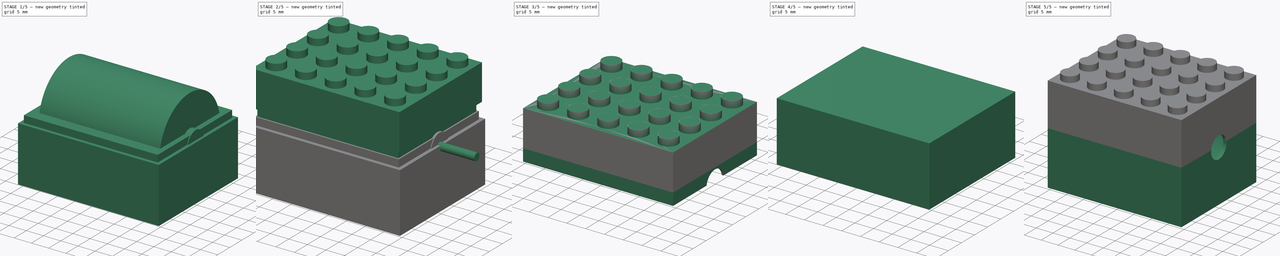
[diagram: build sequence overview — one tinted view per stage of 5, left to right]
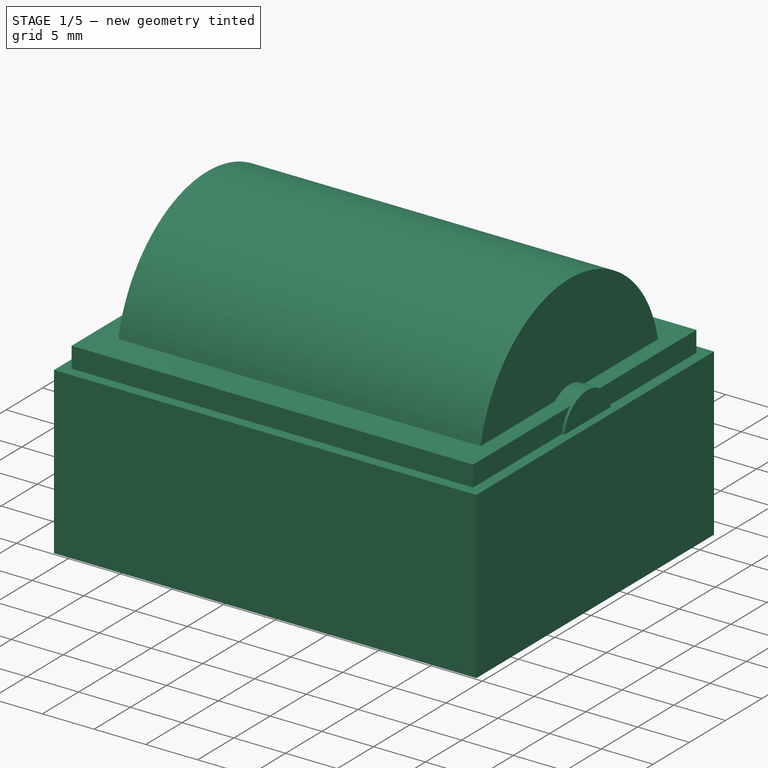
[diagram: stage 1 of 5 — iso view after this stage's code; geometry added in this stage tinted green]
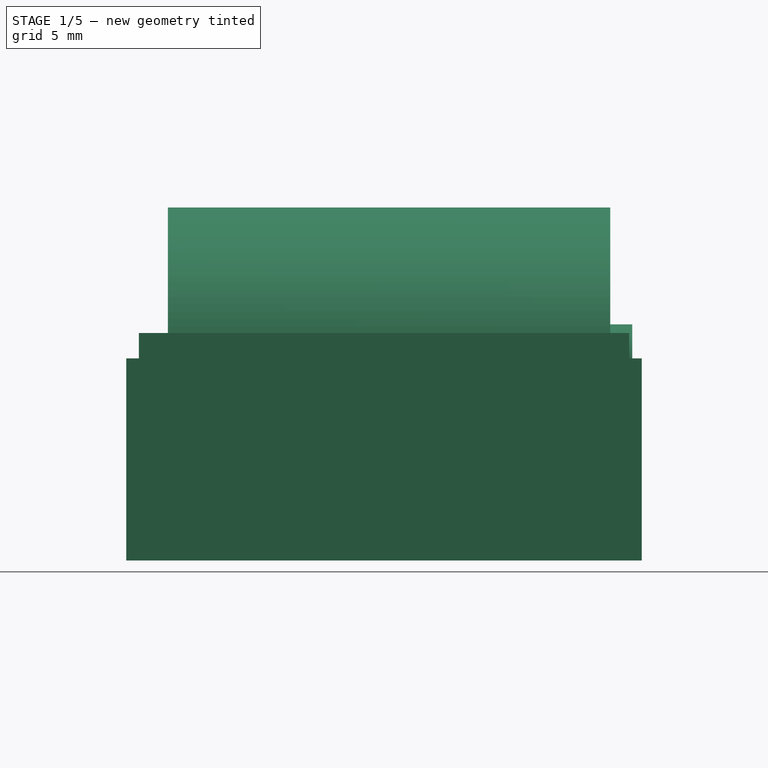
[diagram: stage 1 of 5 — front view after this stage's code; geometry added in this stage tinted green]
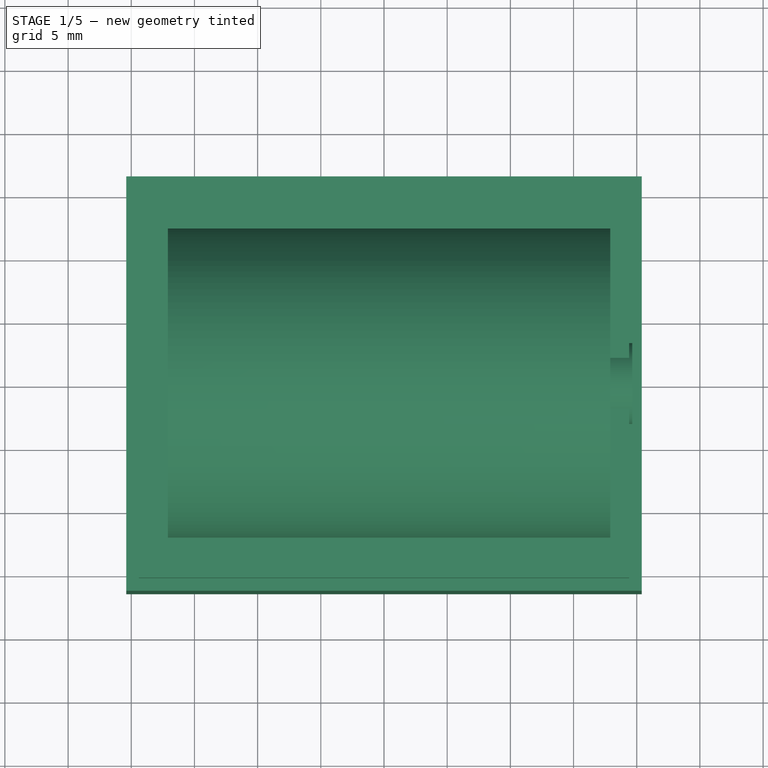
[diagram: stage 1 of 5 — top view after this stage's code; geometry added in this stage tinted green]
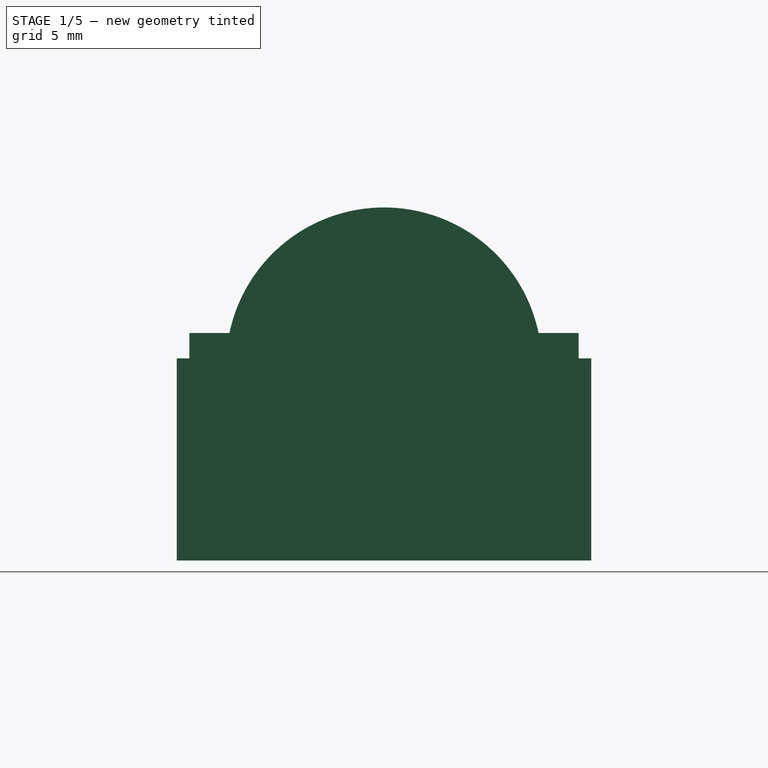
[diagram: stage 1 of 5 — right view after this stage's code; geometry added in this stage tinted green]
FCSTD DOCUMENT  (FreeCAD 0.15R4671 (Git))
Label: lego-engine
License: All rights reserved
LicenseURL: http://en.wikipedia.org/wiki/All_rights_reserved
objects: Sketcher::SketchObject×10, PartDesign::Pad×7, PartDesign::Fillet×4, Part::FeaturePython×3, Part::MultiFuse×3, PartDesign::Pocket×3, Part::Cut×3
note: 43 computed .brp shape members not serialized (recipe doc carries the construction recipe); baked Part::Feature solids carry a one-line shape summary decoded from their .brp

FEATURE [Sketcher::SketchObject] Sketch005  label="enginedimension"
  Placement = pos=(17.9,0,0) rot=(0.57735,0.57735,0.57735;2.0944rad)
  sketch-geometry (1):
    g0: Circle CenterX=0 CenterY=14.4397 CenterZ=0 NormalX=0 NormalY=0 NormalZ=1 Radius=12.5
  constraints (3):
    c: PointOnObject(g0,g-2)
    c: DistanceY(g-1,g0) = 14.4397
    c: Radius(g0) = 12.5
FEATURE [PartDesign::Pad] Pad001
  Length = 35
  Length2 = 100
  Placement = pos=(17.9,0,0) rot=(0.57735,0.57735,0.57735;2.0944rad)
  Reversed = true
  Sketch = -> Sketch005
  Type = 0
FEATURE [Sketcher::SketchObject] Sketch006  label="axis01"
  ExternalGeometry = -> [Pad001]
  Placement = pos=(17.9,0,0) rot=(0.57735,0.57735,0.57735;2.0944rad)
  Support = -> Pad001 [Face2]
  sketch-geometry (1):
    g0: Circle CenterX=0 CenterY=14.4397 CenterZ=0 NormalX=0 NormalY=0 NormalZ=1 Radius=3.25
  constraints (2):
    c: Coincident(g0,g-3)
    c: Radius(g0) = 3.25
FEATURE [PartDesign::Pad] Pad002
  Length = 1.75
  Length2 = 100
  Placement = pos=(17.9,0,0) rot=(0.57735,0.57735,0.57735;2.0944rad)
  Sketch = -> Sketch006
  Type = 0
FEATURE [Sketcher::SketchObject] Sketch009
  Placement = pos=(0,0,-1) rot=(0,0,1;0rad)
  sketch-geometry (4):
    g0: LineSegment StartX=-20.4 StartY=-16.4 StartZ=0 EndX=20.4 EndY=-16.4 EndZ=0
    g1: LineSegment StartX=20.4 StartY=-16.4 StartZ=0 EndX=20.4 EndY=16.4 EndZ=0
    g2: LineSegment StartX=20.4 StartY=16.4 StartZ=0 EndX=-20.4 EndY=16.4 EndZ=0
    g3: LineSegment StartX=-20.4 StartY=16.4 StartZ=0 EndX=-20.4 EndY=-16.4 EndZ=0
  constraints (12):
    c: Coincident(g0,g1)
    c: Coincident(g1,g2)
    c: Coincident(g2,g3)
    c: Coincident(g3,g0)
    c: Horizontal(g0)
    c: Horizontal(g2)
    c: Vertical(g1)
    c: Vertical(g3)
    c: DistanceY(g1,g0) = -32.8
    c: Symmetric(g1,g0,g-1)
    c: DistanceX(g2,g1) = 40.8
    c: Symmetric(g2,g1,g-2)
FEATURE [PartDesign::Pad] Pad004
  Length = 16
  Length2 = 100
  Placement = pos=(0,0,-1) rot=(0,0,1;0rad)
  Sketch = -> Sketch009
  Type = 0
FEATURE [Sketcher::SketchObject] Sketch010
  Placement = pos=(0,0,15) rot=(0,0,1;0rad)
  Support = -> Pad004 [Face6]
  sketch-geometry (4):
    g0: LineSegment StartX=-19.4 StartY=15.4 StartZ=0 EndX=19.4 EndY=15.4 EndZ=0
    g1: LineSegment StartX=19.4 StartY=15.4 StartZ=0 EndX=19.4 EndY=-15.4 EndZ=0
    g2: LineSegment StartX=19.4 StartY=-15.4 StartZ=0 EndX=-19.4 EndY=-15.4 EndZ=0
    g3: LineSegment StartX=-19.4 StartY=-15.4 StartZ=0 EndX=-19.4 EndY=15.4 EndZ=0
  constraints (12):
    c: Coincident(g0,g1)
    c: Coincident(g1,g2)
    c: Coincident(g2,g3)
    c: Coincident(g3,g0)
    c: Horizontal(g0)
    c: Horizontal(g2)
    c: Vertical(g1)
    c: Vertical(g3)
    c: Symmetric(g0,g0,g-2)
    c: Symmetric(g2,g0,g-1)
    c: DistanceY(g0,g2) = -30.8
    c: DistanceX(g0,g0) = 38.8
FEATURE [PartDesign::Pad] Pad005
  Length = 2
  Length2 = 100
  Placement = pos=(0,0,-1) rot=(0,0,1;0rad)
  Sketch = -> Sketch010
  Type = 0
FEATURE [Part::MultiFuse] Fusion001  label="aid upper piece cut"
  Shapes = -> [Pad004,Pad005]
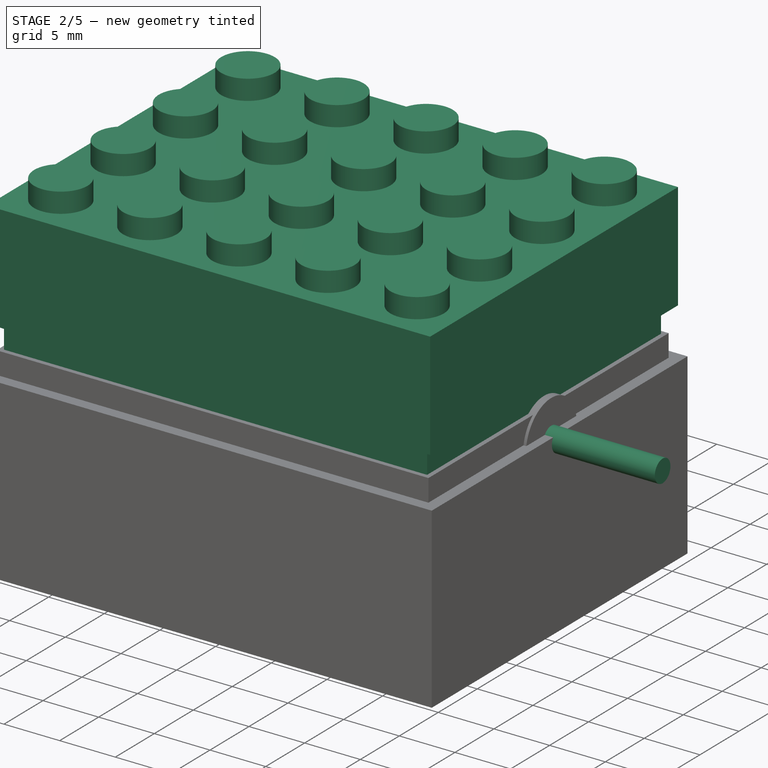
[diagram: stage 2 of 5 — iso view after this stage's code; geometry added in this stage tinted green]
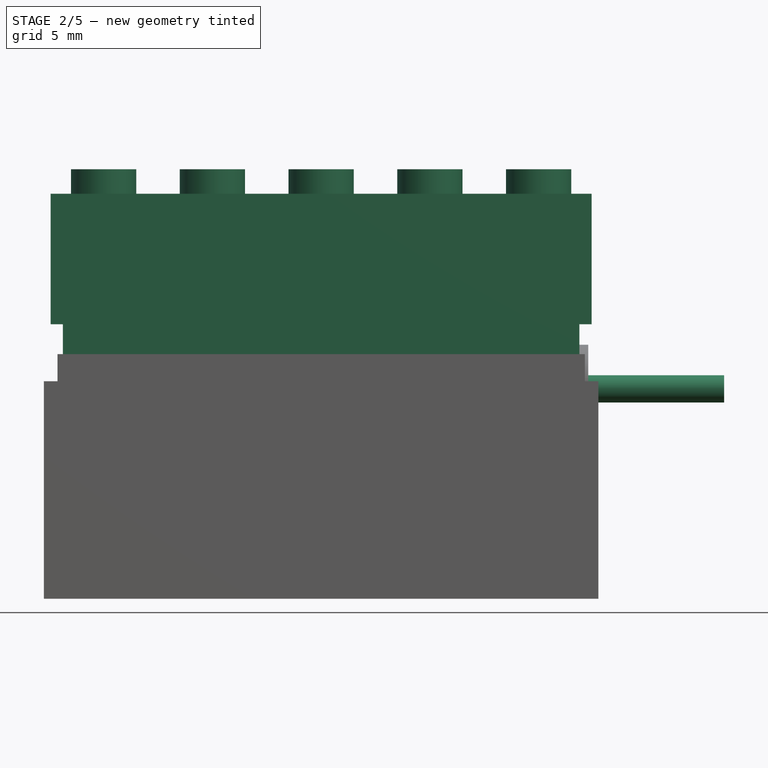
[diagram: stage 2 of 5 — front view after this stage's code; geometry added in this stage tinted green]
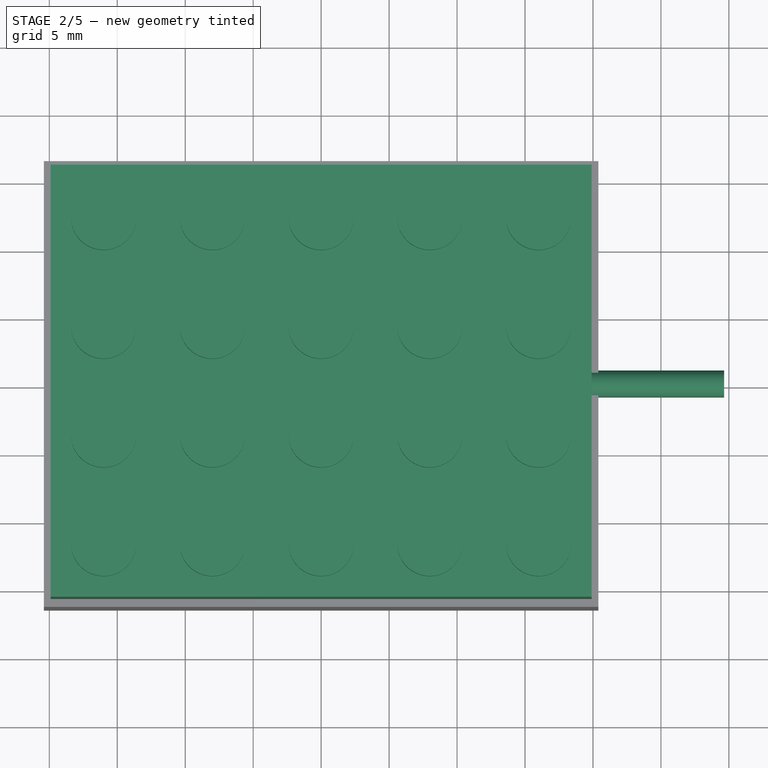
[diagram: stage 2 of 5 — top view after this stage's code; geometry added in this stage tinted green]
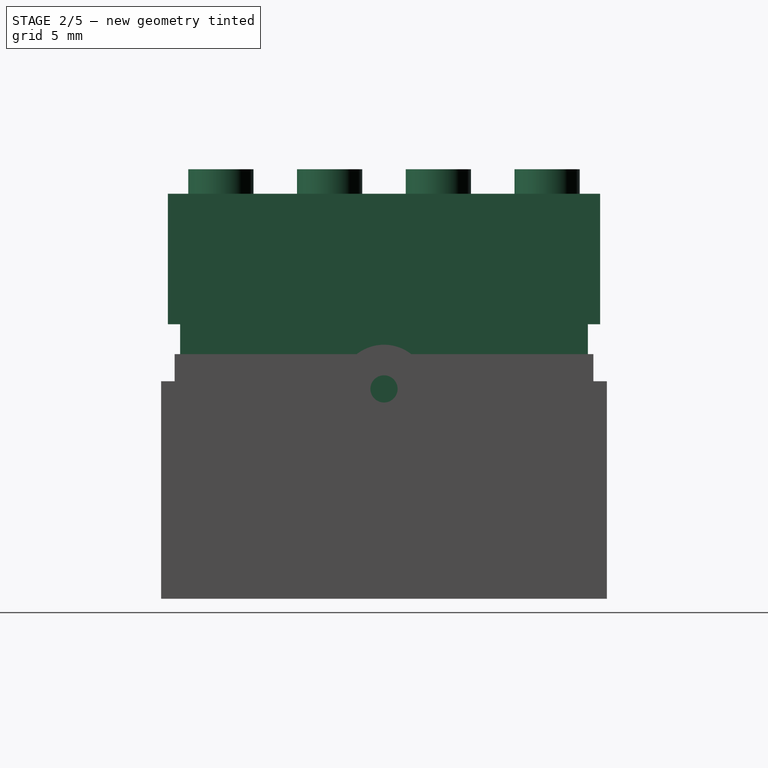
[diagram: stage 2 of 5 — right view after this stage's code; geometry added in this stage tinted green]
FEATURE [Part::FeaturePython] Lego002  # WARN: FeaturePython — macro-defined, semantics opaque (R4)
  Placement = pos=(0,0,19.2) rot=(0,0,1;0rad)
  unitsX = 5
  unitsY = 4
FEATURE [Sketcher::SketchObject] Sketch
  Placement = pos=(0,0,2) rot=(0,0,1;0rad)
  sketch-geometry (4):
    g0: LineSegment StartX=-19 StartY=-15 StartZ=0 EndX=19 EndY=-15 EndZ=0
    g1: LineSegment StartX=19 StartY=-15 StartZ=0 EndX=19 EndY=15 EndZ=0
    g2: LineSegment StartX=19 StartY=15 StartZ=0 EndX=-19 EndY=15 EndZ=0
    g3: LineSegment StartX=-19 StartY=15 StartZ=0 EndX=-19 EndY=-15 EndZ=0
  constraints (12):
    c: Coincident(g0,g1)
    c: Coincident(g1,g2)
    c: Coincident(g2,g3)
    c: Coincident(g3,g0)
    c: Horizontal(g0)
    c: Horizontal(g2)
    c: Vertical(g1)
    c: Vertical(g3)
    c: DistanceY(g-1,g1) = 15
    c: DistanceX(g-1,g2) = -19
    c: Symmetric(g2,g1,g-2)
    c: Symmetric(g1,g0,g-1)
FEATURE [PartDesign::Pad] Pad
  Length = 26.2
  Length2 = 100
  Placement = pos=(0,0,2) rot=(0,0,1;0rad)
  Sketch = -> Sketch
  Type = 0
FEATURE [Sketcher::SketchObject] Sketch007  label="axis"
  ExternalGeometry = -> [Pad002]
  Placement = pos=(19.65,0,0) rot=(0.57735,0.57735,0.57735;2.0944rad)
  Support = -> Pad002 [Face5]
  sketch-geometry (1):
    g0: Circle CenterX=0 CenterY=14.4397 CenterZ=0 NormalX=0 NormalY=0 NormalZ=1 Radius=1
  constraints (2):
    c: Coincident(g0,g-3)
    c: Radius(g0) = 1
FEATURE [PartDesign::Pad] Pad003
  Length = 10
  Length2 = 100
  Placement = pos=(17.9,0,0) rot=(0.57735,0.57735,0.57735;2.0944rad)
  Sketch = -> Sketch007
  Type = 0
FEATURE [Sketcher::SketchObject] Sketch008
  ExternalGeometry = -> [Pad003]
  Placement = pos=(-17.1,0,0) rot=(-0.57735,-0.57735,0.57735;2.0944rad)
  Support = -> Pad003 [Face3]
  sketch-geometry (8):
    g0: LineSegment StartX=-1.5 StartY=-2.03003 StartZ=0 EndX=-1.5 EndY=-4.93003 EndZ=0
    g1: LineSegment StartX=-1.5 StartY=-4.93003 StartZ=0 EndX=1.5 EndY=-4.93003 EndZ=0
    g2: LineSegment StartX=1.5 StartY=-4.93003 StartZ=0 EndX=1.5 EndY=-2.03003 EndZ=0
    g3: ArcOfCircle CenterX=0 CenterY=-14.4397 CenterZ=0 NormalX=0 NormalY=0 NormalZ=1 Radius=12.5 StartAngle=1.45051 EndAngle=1.69109
    g4: LineSegment StartX=1.5 StartY=-26.8494 StartZ=0 EndX=1.5 EndY=-23.9494 EndZ=0
    g5: LineSegment StartX=1.5 StartY=-23.9494 StartZ=0 EndX=-1.5 EndY=-23.9494 EndZ=0
    g6: LineSegment StartX=-1.5 StartY=-23.9494 StartZ=0 EndX=-1.5 EndY=-26.8494 EndZ=0
    g7: ArcOfCircle CenterX=0 CenterY=-14.4397 CenterZ=0 NormalX=0 NormalY=0 NormalZ=1 Radius=12.5 StartAngle=4.5921 EndAngle=4.83268
  constraints (26):
    c: PointOnObject(g0,g-3)
    c: Vertical(g0)
    c: Coincident(g0,g1)
    c: Horizontal(g1)
    c: Coincident(g1,g2)
    c: PointOnObject(g2,g-3)
    c: Vertical(g2)
    c: Coincident(g3,g-3)
    c: Coincident(g3,g2)
    c: Coincident(g3,g0)
    c: DistanceX(g1,g0) = -3
    c: Symmetric(g1,g0,g-2)
    c: DistanceY(g0,g0) = 2.9
    c: PointOnObject(g4,g-3)
    c: Vertical(g4)
    c: Coincident(g4,g5)
    c: Horizontal(g5)
    c: Coincident(g5,g6)
    c: PointOnObject(g6,g-3)
    c: Vertical(g6)
    c: Coincident(g7,g3)
    c: Coincident(g7,g6)
    c: Coincident(g7,g4)
    c: Equal(g4,g2)
    c: Equal(g5,g1)
    c: Equal(g6,g0)
FEATURE [PartDesign::Pocket] Pocket001  label="engine"
  Length = 7
  Placement = pos=(17.9,0,0) rot=(0.57735,0.57735,0.57735;2.0944rad)
  Sketch = -> Sketch008
  Type = 0
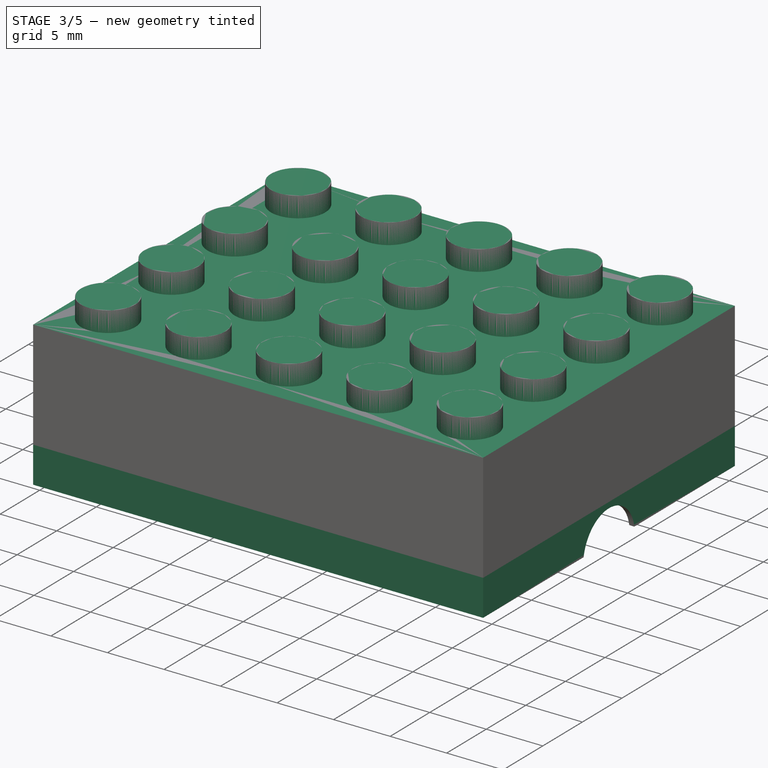
[diagram: stage 3 of 5 — iso view after this stage's code; geometry added in this stage tinted green]
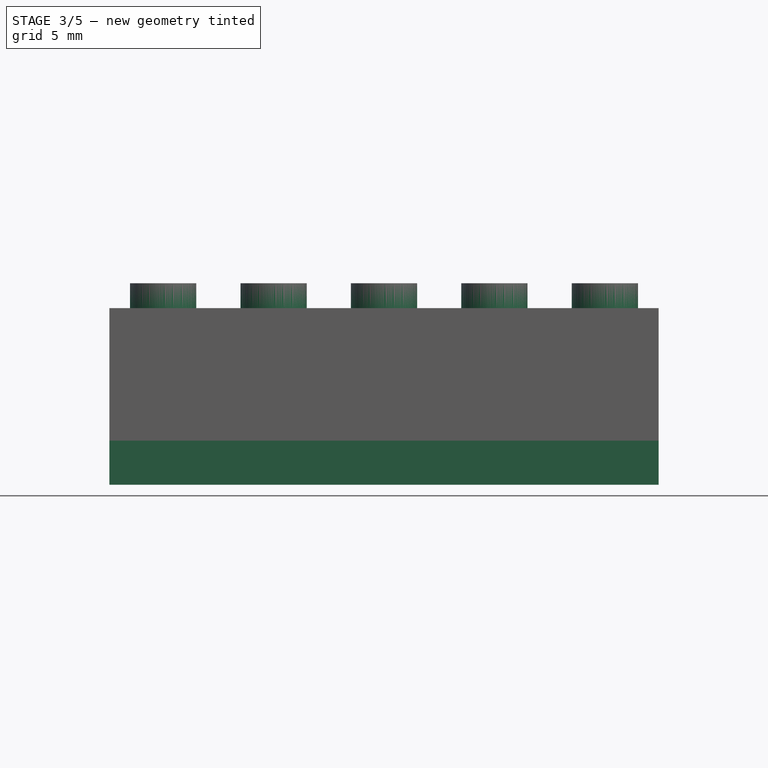
[diagram: stage 3 of 5 — front view after this stage's code; geometry added in this stage tinted green]
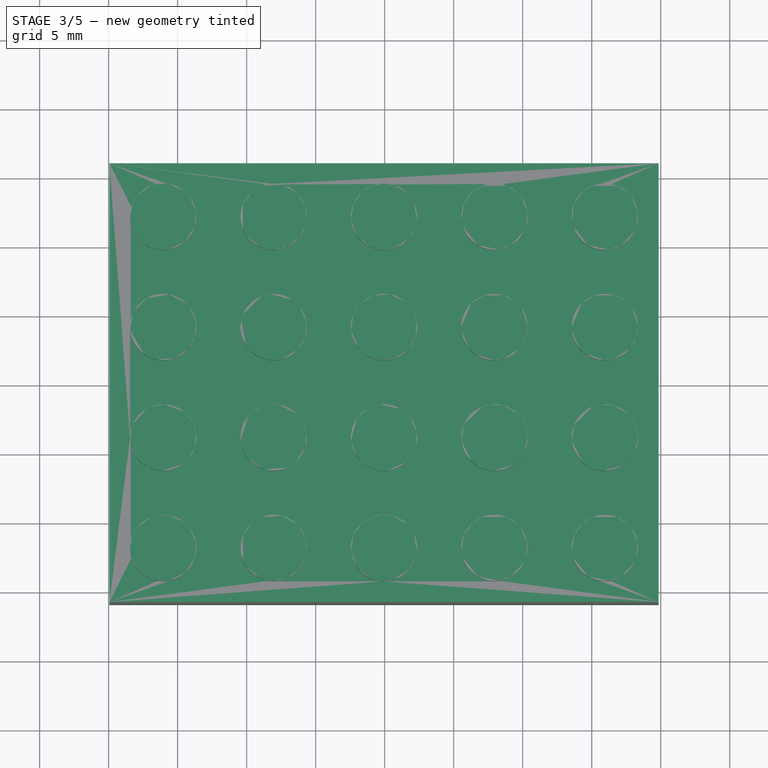
[diagram: stage 3 of 5 — top view after this stage's code; geometry added in this stage tinted green]
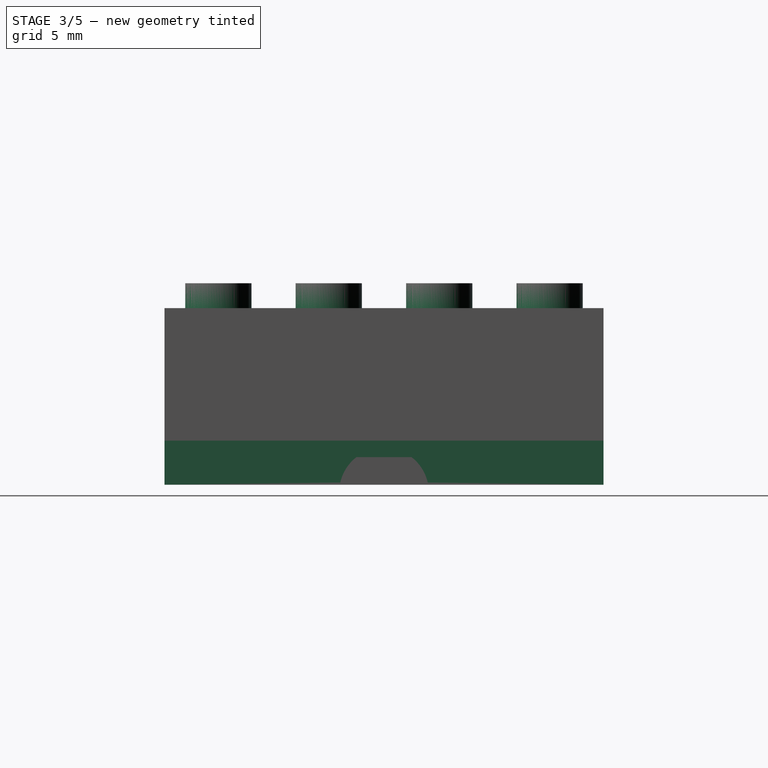
[diagram: stage 3 of 5 — right view after this stage's code; geometry added in this stage tinted green]
FEATURE [Part::FeaturePython] Lego  # WARN: FeaturePython — macro-defined, semantics opaque (R4)
  unitsX = 5
  unitsY = 4
FEATURE [Part::FeaturePython] Lego001  # WARN: FeaturePython — macro-defined, semantics opaque (R4)
  Placement = pos=(0,0,9.6) rot=(0,0,1;0rad)
  unitsX = 5
  unitsY = 4
FEATURE [Part::MultiFuse] Fusion  label="brick"
  Placement = pos=(-1,0,-1) rot=(0,0,1;0rad)
  Shapes = -> [Lego,Lego001,Lego002,Pad]
FEATURE [Part::Cut] Cut  label="engine brick"
  Base = -> Fusion
  Placement = pos=(0.950052,0,0) rot=(0,0,1;0rad)
  Tool = -> Pocket001
FEATURE [Part::Cut] Cut002  label="upperpiece"
  Base = -> Cut
  Tool = -> Fusion001
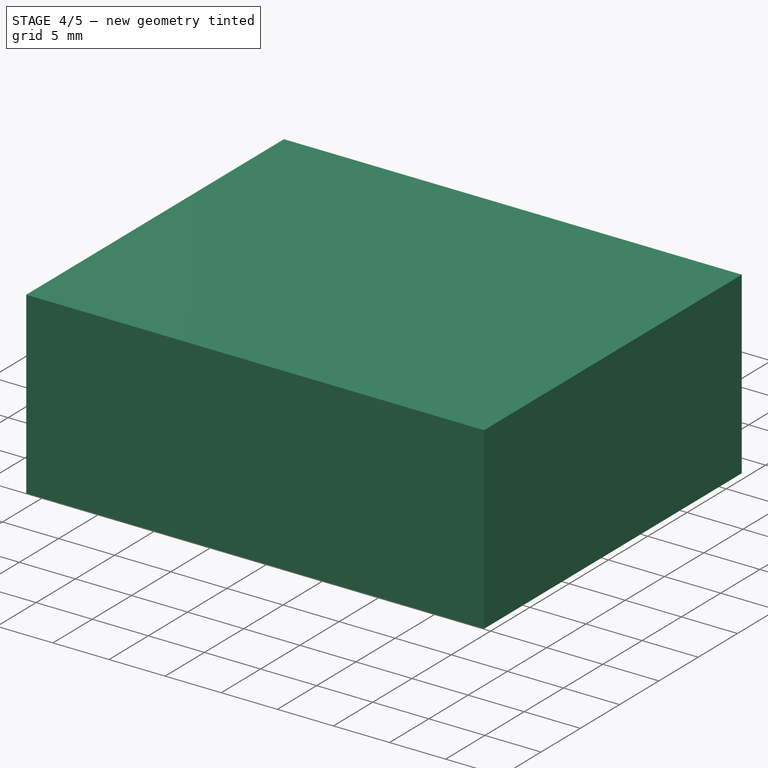
[diagram: stage 4 of 5 — iso view after this stage's code; geometry added in this stage tinted green]
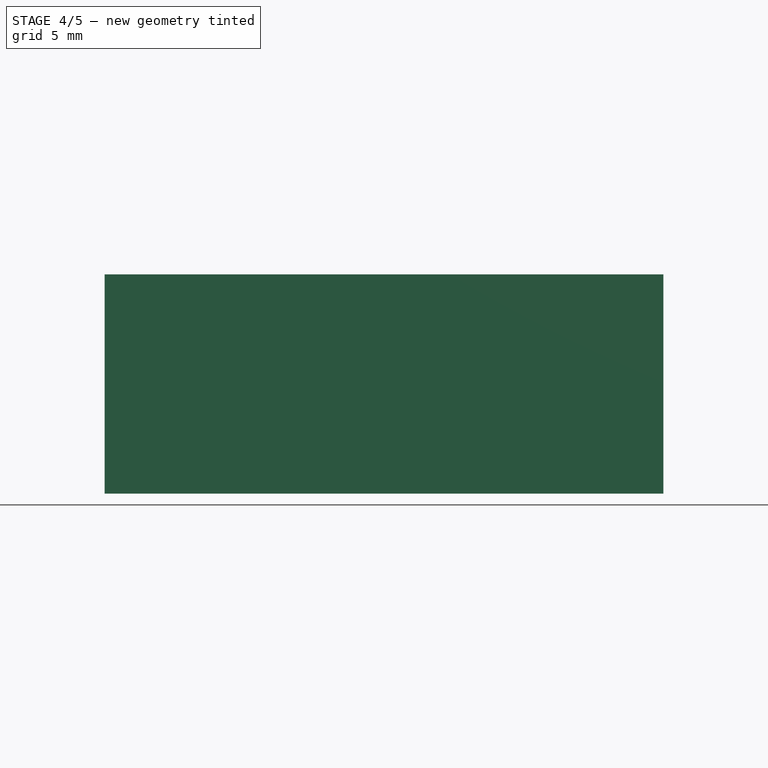
[diagram: stage 4 of 5 — front view after this stage's code; geometry added in this stage tinted green]
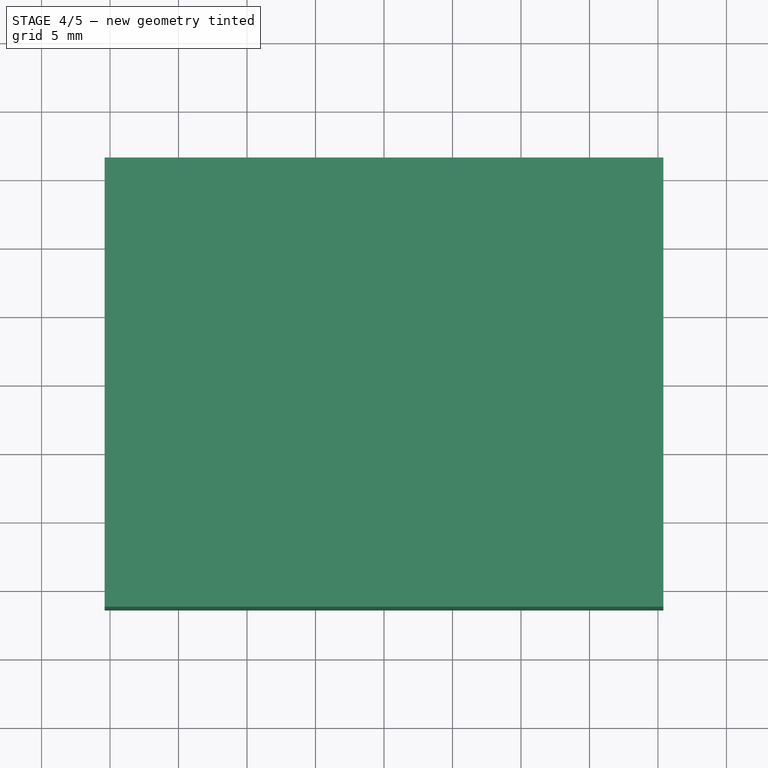
[diagram: stage 4 of 5 — top view after this stage's code; geometry added in this stage tinted green]
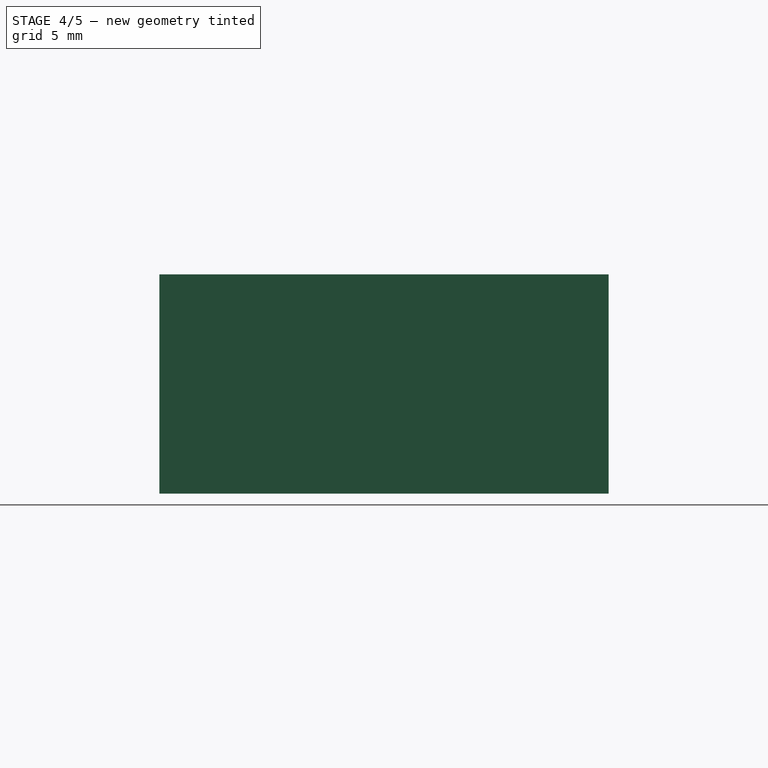
[diagram: stage 4 of 5 — right view after this stage's code; geometry added in this stage tinted green]
FEATURE [Sketcher::SketchObject] Sketch011
  Placement = pos=(0,0,15) rot=(0,0,1;0rad)
  sketch-geometry (4):
    g0: LineSegment StartX=-20.4 StartY=-16.4 StartZ=0 EndX=20.4 EndY=-16.4 EndZ=0
    g1: LineSegment StartX=20.4 StartY=-16.4 StartZ=0 EndX=20.4 EndY=16.4 EndZ=0
    g2: LineSegment StartX=20.4 StartY=16.4 StartZ=0 EndX=-20.4 EndY=16.4 EndZ=0
    g3: LineSegment StartX=-20.4 StartY=16.4 StartZ=0 EndX=-20.4 EndY=-16.4 EndZ=0
  constraints (12):
    c: Coincident(g0,g1)
    c: Coincident(g1,g2)
    c: Coincident(g2,g3)
    c: Coincident(g3,g0)
    c: Horizontal(g0)
    c: Horizontal(g2)
    c: Vertical(g1)
    c: Vertical(g3)
    c: Symmetric(g2,g1,g-2)
    c: DistanceX(g2,g1) = 40.8
    c: DistanceY(g1,g0) = -32.8
    c: Symmetric(g1,g0,g-1)
FEATURE [PartDesign::Pad] Pad006  label="aid cut bottom piece"
  Length = 16
  Length2 = 100
  Placement = pos=(0,0,15) rot=(0,0,1;0rad)
  Sketch = -> Sketch011
  Type = 0
FEATURE [Sketcher::SketchObject] Sketch012
  Placement = pos=(0,0,15) rot=(1,0,0;3.14159rad)
  Support = -> Pad006 [Face5]
  sketch-geometry (4):
    g0: LineSegment StartX=-19.4 StartY=15.4 StartZ=0 EndX=19.4 EndY=15.4 EndZ=0
    g1: LineSegment StartX=19.4 StartY=15.4 StartZ=0 EndX=19.4 EndY=-15.4 EndZ=0
    g2: LineSegment StartX=19.4 StartY=-15.4 StartZ=0 EndX=-19.4 EndY=-15.4 EndZ=0
    g3: LineSegment StartX=-19.4 StartY=-15.4 StartZ=0 EndX=-19.4 EndY=15.4 EndZ=0
  constraints (12):
    c: Coincident(g0,g1)
    c: Coincident(g1,g2)
    c: Coincident(g2,g3)
    c: Coincident(g3,g0)
    c: Horizontal(g0)
    c: Horizontal(g2)
    c: Vertical(g1)
    c: Vertical(g3)
    c: Symmetric(g0,g0,g-2)
    c: Symmetric(g2,g0,g-1)
    c: DistanceY(g0,g2) = -30.8
    c: DistanceX(g0,g0) = 38.8
FEATURE [PartDesign::Pocket] Pocket
  Length = 2
  Placement = pos=(0,0,15) rot=(0,0,1;0rad)
  Sketch = -> Sketch012
  Type = 0
FEATURE [PartDesign::Fillet] Fillet
  Base = -> Pocket [Edge23]
  Placement = pos=(0,0,15) rot=(0,0,1;0rad)
  Radius = 1
FEATURE [Sketcher::SketchObject] Sketch013
  Placement = pos=(-19.9499,0,0) rot=(0.57735,-0.57735,-0.57735;2.0944rad)
  Support = -> Cut002 [Face3]
  sketch-geometry (1):
    g0: Circle CenterX=0 CenterY=19 CenterZ=0 NormalX=0 NormalY=0 NormalZ=1 Radius=1.5
  constraints (3):
    c: PointOnObject(g0,g-2)
    c: Radius(g0) = 1.5
    c: DistanceY(g-1,g0) = 19
FEATURE [PartDesign::Pocket] Pocket002
  Length = 5
  Sketch = -> Sketch013
  Type = 2
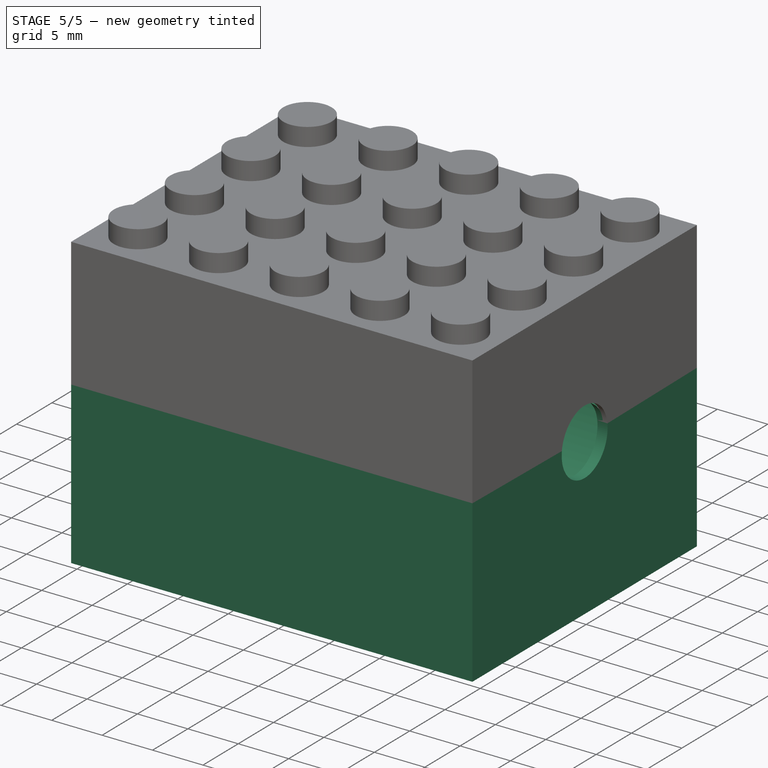
[diagram: stage 5 of 5 — iso view after this stage's code; geometry added in this stage tinted green]
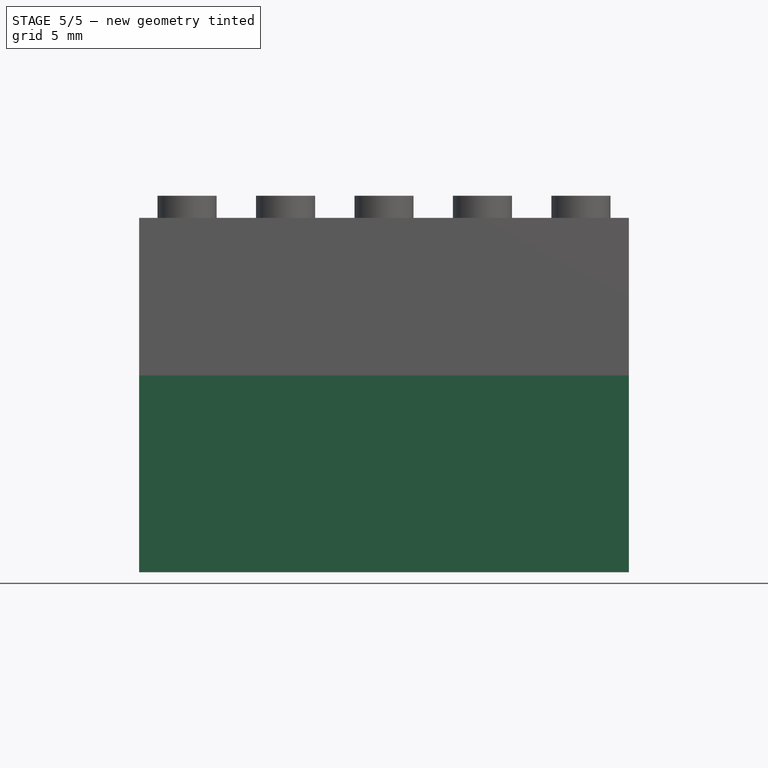
[diagram: stage 5 of 5 — front view after this stage's code; geometry added in this stage tinted green]
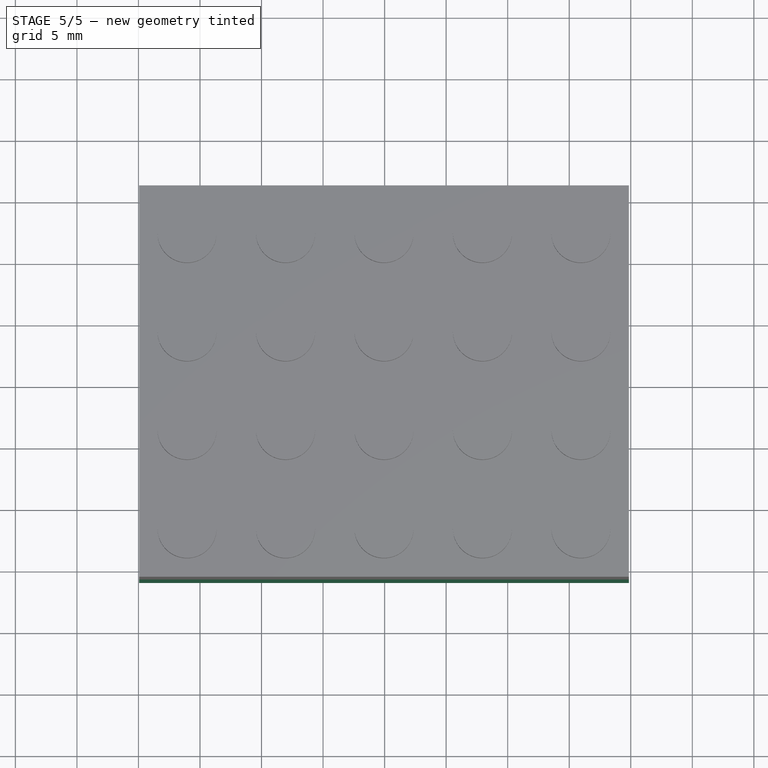
[diagram: stage 5 of 5 — top view after this stage's code; geometry added in this stage tinted green]
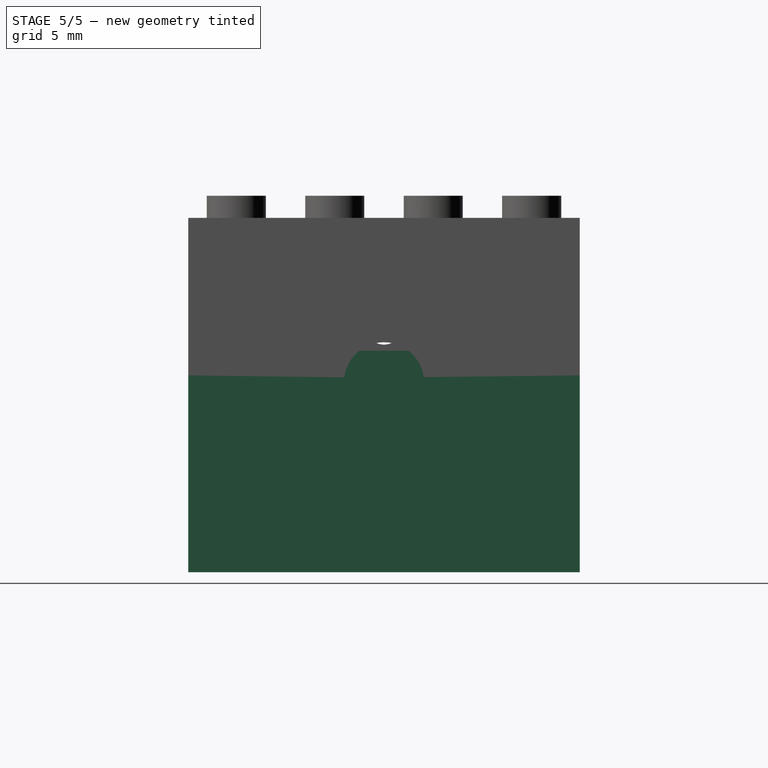
[diagram: stage 5 of 5 — right view after this stage's code; geometry added in this stage tinted green]
FEATURE [PartDesign::Fillet] Fillet001
  Base = -> Fillet [Edge18]
  Placement = pos=(0,0,15) rot=(0,0,1;0rad)
  Radius = 1
FEATURE [PartDesign::Fillet] Fillet002
  Base = -> Fillet001 [Edge12]
  Placement = pos=(0,0,15) rot=(0,0,1;0rad)
  Radius = 1
FEATURE [PartDesign::Fillet] Fillet003
  Base = -> Fillet002 [Edge27]
  Placement = pos=(0,0,15) rot=(0,0,1;0rad)
  Radius = 1
FEATURE [Part::MultiFuse] Fusion002  label="aid bottom piece"
  Shapes = -> [Pocket,Fillet,Fillet002,Fillet003,Fillet001]
FEATURE [Part::Cut] Cut001  label="bottompiece"
  Base = -> Cut
  Tool = -> Fusion002
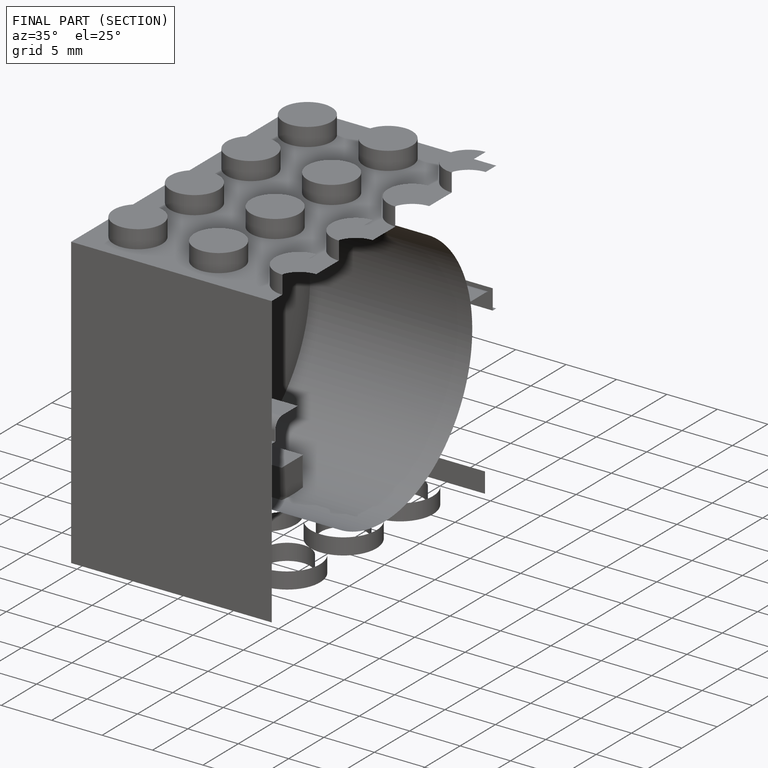
[diagram: finished part — half-section view (interior)]
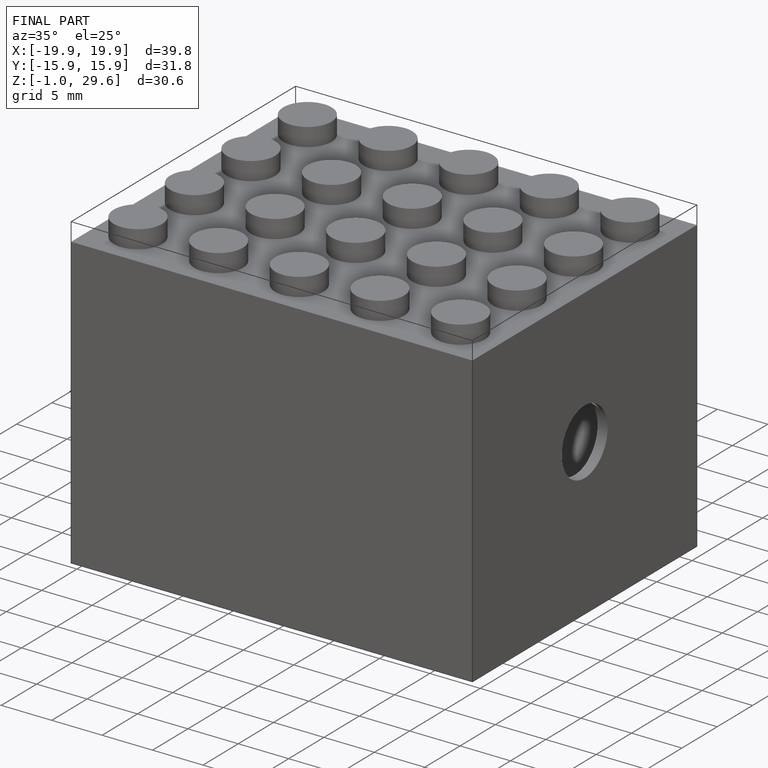
[diagram: finished part — iso view with bounding-box wireframe]
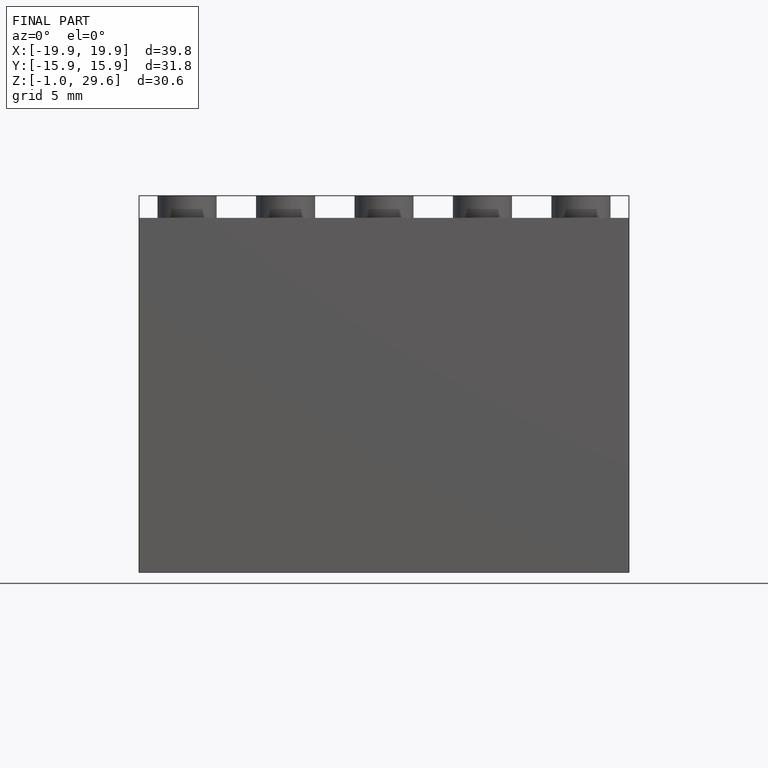
[diagram: finished part — front view with bounding-box wireframe]
